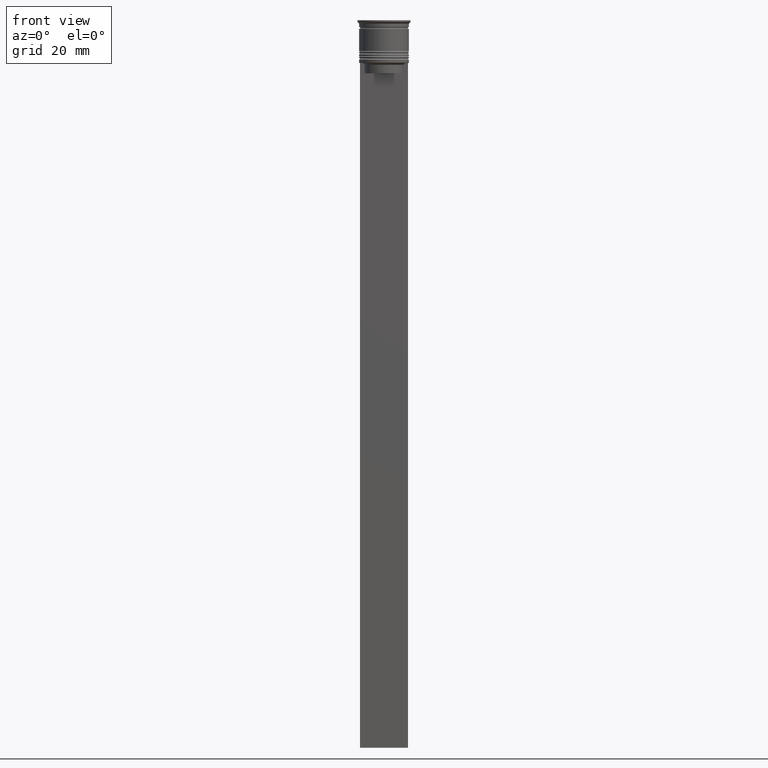
[diagram: clean part render]
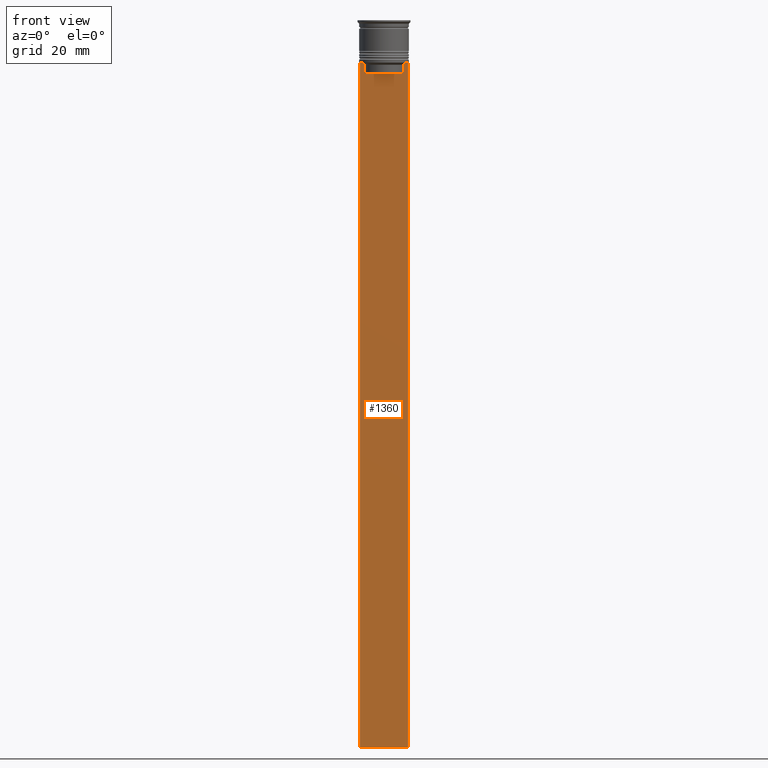
[diagram: same view with one face highlighted and labeled with its STEP entity id]
A machine part, front view. The second image highlights one B-rep face of the part: STEP entity #1360.
In plain terms, the highlighted planar face has unit normal (0, -1, -0).
Its self-contained STEP definition (entity closure, byte-faithful):
#112 = VECTOR ( 'NONE', #913, 1000.000000000000000 ) ;
#159 = CARTESIAN_POINT ( 'NONE',  ( -6.999999999999987566, -0.5000000000000022204, 1.535668847618198329 ) ) ;
#170 = CARTESIAN_POINT ( 'NONE',  ( 7.000000000000012434, -0.5000000000000022204, -212.5000000000000284 ) ) ;
#239 = CARTESIAN_POINT ( 'NONE',  ( 5.627832620112292794, -0.5000000000000022204, 0.000000000000000000 ) ) ;
#254 = VECTOR ( 'NONE', #2335, 1000.000000000000000 ) ;
#258 = CARTESIAN_POINT ( 'NONE',  ( 5.962396079681182570, -0.5000000000000022204, -12.66669137279835766 ) ) ;
#282 = CARTESIAN_POINT ( 'NONE',  ( 6.129641098791995368, -0.5000000000000022204, -12.50000000000000000 ) ) ;
#300 = DIRECTION ( 'NONE',  ( 1.000000000000000000, 0.000000000000000000, 0.000000000000000000 ) ) ;
#348 = EDGE_CURVE ( 'NONE', #1829, #962, #1479, .T. ) ;
#440 = CARTESIAN_POINT ( 'NONE',  ( 5.795128760752288777, -0.5000000000000022204, -12.83336023406855375 ) ) ;
#444 = VECTOR ( 'NONE', #1303, 1000.000000000000000 ) ;
#493 = ORIENTED_EDGE ( 'NONE', *, *, #2265, .F. ) ;
#500 = CARTESIAN_POINT ( 'NONE',  ( -5.627832620112292794, -0.5000000000000022204, -13.00000000000000000 ) ) ;
#552 = CARTESIAN_POINT ( 'NONE',  ( 7.000000000000012434, -0.5000000000000022204, 1.535668847618198329 ) ) ;
#559 = EDGE_LOOP ( 'NONE', ( #493, #1364, #2246, #1957, #1563, #1414, #2236, #2304, #2018, #1092 ) ) ;
#569 = EDGE_CURVE ( 'NONE', #962, #1139, #669, .T. ) ;
#580 = CARTESIAN_POINT ( 'NONE',  ( 7.000000000000012434, -0.5000000000000022204, 1.535668847618198329 ) ) ;
#604 = CARTESIAN_POINT ( 'NONE',  ( 7.000000000000012434, -0.5000000000000022204, -12.50000000000000000 ) ) ;
#619 = LINE ( 'NONE', #1336, #2171 ) ;
#642 = VERTEX_POINT ( 'NONE', #2112 ) ;
#653 = LINE ( 'NONE', #1214, #1469 ) ;
#669 = LINE ( 'NONE', #170, #254 ) ;
#692 = CARTESIAN_POINT ( 'NONE',  ( -6.129641098791995368, -0.5000000000000022204, -12.50000000000000000 ) ) ;
#702 = LINE ( 'NONE', #159, #2233 ) ;
#769 = PLANE ( 'NONE',  #1611 ) ;
#791 = CARTESIAN_POINT ( 'NONE',  ( -6.999999999999987566, -0.5000000000000022204, -12.50000000000000000 ) ) ;
#817 = CARTESIAN_POINT ( 'NONE',  ( 5.627832620112292794, -0.5000000000000022204, -15.50000000000000000 ) ) ;
#822 = VERTEX_POINT ( 'NONE', #1143 ) ;
#825 = LINE ( 'NONE', #2306, #1394 ) ;
#848 = VECTOR ( 'NONE', #1511, 1000.000000000000000 ) ;
#879 = CARTESIAN_POINT ( 'NONE',  ( 5.627832620112292794, -0.5000000000000022204, -13.00000000000000000 ) ) ;
#902 = EDGE_CURVE ( 'NONE', #1770, #1330, #1533, .T. ) ;
#904 = EDGE_CURVE ( 'NONE', #822, #1461, #619, .T. ) ;
#913 = DIRECTION ( 'NONE',  ( 0.000000000000000000, 0.000000000000000000, -1.000000000000000000 ) ) ;
#962 = VERTEX_POINT ( 'NONE', #1544 ) ;
#965 = CARTESIAN_POINT ( 'NONE',  ( 5.627832620112292794, -0.5000000000000022204, -13.00000000000000000 ) ) ;
#990 = CARTESIAN_POINT ( 'NONE',  ( -5.627832620112292794, -0.5000000000000022204, -15.50000000000000000 ) ) ;
#991 = DIRECTION ( 'NONE',  ( 0.000000000000000000, 0.000000000000000000, -1.000000000000000000 ) ) ;
#1006 = CARTESIAN_POINT ( 'NONE',  ( 7.000000000000012434, -0.5000000000000022204, -12.50000000000000000 ) ) ;
#1092 = ORIENTED_EDGE ( 'NONE', *, *, #904, .F. ) ;
#1107 = EDGE_CURVE ( 'NONE', #1526, #2303, #2118, .T. ) ;
#1139 = VERTEX_POINT ( 'NONE', #1835 ) ;
#1143 = CARTESIAN_POINT ( 'NONE',  ( -5.627832620112292794, -0.5000000000000022204, -13.00000000000000000 ) ) ;
#1153 = FACE_OUTER_BOUND ( 'NONE', #559, .T. ) ;
#1214 = CARTESIAN_POINT ( 'NONE',  ( 7.000000000000012434, -0.5000000000000022204, -12.50000000000000000 ) ) ;
#1229 = CARTESIAN_POINT ( 'NONE',  ( -5.962396146966409738, -0.5000000000000022204, -12.66669130573587054 ) ) ;
#1242 = CARTESIAN_POINT ( 'NONE',  ( -5.795128834036803234, -0.5000000000000022204, -12.83336016107156574 ) ) ;
#1272 = B_SPLINE_CURVE_WITH_KNOTS ( 'NONE', 3,
 ( #965, #440, #258, #282 ),
 .UNSPECIFIED., .F., .F.,
 ( 4, 4 ),
 ( 0.02651134470867370918, 0.02721991123504334531 ),
 .UNSPECIFIED. ) ;
#1303 = DIRECTION ( 'NONE',  ( -0.000000000000000000, -0.000000000000000000, 1.000000000000000000 ) ) ;
#1306 = DIRECTION ( 'NONE',  ( 0.000000000000000000, -1.000000000000000000, -0.000000000000000000 ) ) ;
#1330 = VERTEX_POINT ( 'NONE', #1855 ) ;
#1336 = CARTESIAN_POINT ( 'NONE',  ( -5.627832620112292794, -0.5000000000000022204, 0.000000000000000000 ) ) ;
#1360 = ADVANCED_FACE ( 'NONE', ( #1153 ), #769, .T. ) ;
#1364 = ORIENTED_EDGE ( 'NONE', *, *, #902, .F. ) ;
#1394 = VECTOR ( 'NONE', #300, 1000.000000000000000 ) ;
#1414 = ORIENTED_EDGE ( 'NONE', *, *, #1851, .F. ) ;
#1461 = VERTEX_POINT ( 'NONE', #990 ) ;
#1469 = VECTOR ( 'NONE', #1909, 1000.000000000000000 ) ;
#1479 = LINE ( 'NONE', #552, #112 ) ;
#1511 = DIRECTION ( 'NONE',  ( 1.000000000000000000, 0.000000000000000000, 0.000000000000000000 ) ) ;
#1526 = VERTEX_POINT ( 'NONE', #817 ) ;
#1533 = LINE ( 'NONE', #604, #848 ) ;
#1544 = CARTESIAN_POINT ( 'NONE',  ( 7.000000000000012434, -0.5000000000000022204, -212.5000000000000284 ) ) ;
#1563 = ORIENTED_EDGE ( 'NONE', *, *, #348, .F. ) ;
#1597 = DIRECTION ( 'NONE',  ( 0.000000000000000000, 0.000000000000000000, -1.000000000000000000 ) ) ;
#1611 = AXIS2_PLACEMENT_3D ( 'NONE', #580, #1306, #2019 ) ;
#1770 = VERTEX_POINT ( 'NONE', #791 ) ;
#1829 = VERTEX_POINT ( 'NONE', #1006 ) ;
#1835 = CARTESIAN_POINT ( 'NONE',  ( -6.999999999999987566, -0.5000000000000022204, -212.5000000000000284 ) ) ;
#1851 = EDGE_CURVE ( 'NONE', #642, #1829, #653, .T. ) ;
#1855 = CARTESIAN_POINT ( 'NONE',  ( -6.129641098791995368, -0.5000000000000022204, -12.50000000000000000 ) ) ;
#1863 = EDGE_CURVE ( 'NONE', #1461, #1526, #825, .T. ) ;
#1909 = DIRECTION ( 'NONE',  ( 1.000000000000000000, 0.000000000000000000, 0.000000000000000000 ) ) ;
#1957 = ORIENTED_EDGE ( 'NONE', *, *, #569, .F. ) ;
#2018 = ORIENTED_EDGE ( 'NONE', *, *, #1863, .F. ) ;
#2019 = DIRECTION ( 'NONE',  ( 0.000000000000000000, 0.000000000000000000, -1.000000000000000000 ) ) ;
#2112 = CARTESIAN_POINT ( 'NONE',  ( 6.129641098791995368, -0.5000000000000022204, -12.50000000000000000 ) ) ;
#2118 = LINE ( 'NONE', #239, #444 ) ;
#2171 = VECTOR ( 'NONE', #991, 1000.000000000000000 ) ;
#2201 = EDGE_CURVE ( 'NONE', #2303, #642, #1272, .T. ) ;
#2233 = VECTOR ( 'NONE', #1597, 1000.000000000000000 ) ;
#2236 = ORIENTED_EDGE ( 'NONE', *, *, #2201, .F. ) ;
#2238 = B_SPLINE_CURVE_WITH_KNOTS ( 'NONE', 3,
 ( #692, #1229, #1242, #500 ),
 .UNSPECIFIED., .F., .F.,
 ( 4, 4 ),
 ( 0.01045365750109871796, 0.01116204421161398619 ),
 .UNSPECIFIED. ) ;
#2246 = ORIENTED_EDGE ( 'NONE', *, *, #2337, .T. ) ;
#2265 = EDGE_CURVE ( 'NONE', #1330, #822, #2238, .T. ) ;
#2303 = VERTEX_POINT ( 'NONE', #879 ) ;
#2304 = ORIENTED_EDGE ( 'NONE', *, *, #1107, .F. ) ;
#2306 = CARTESIAN_POINT ( 'NONE',  ( 0.000000000000000000, -0.5000000000000022204, -15.50000000000000000 ) ) ;
#2335 = DIRECTION ( 'NONE',  ( -1.000000000000000000, 0.000000000000000000, 0.000000000000000000 ) ) ;
#2337 = EDGE_CURVE ( 'NONE', #1770, #1139, #702, .T. ) ;